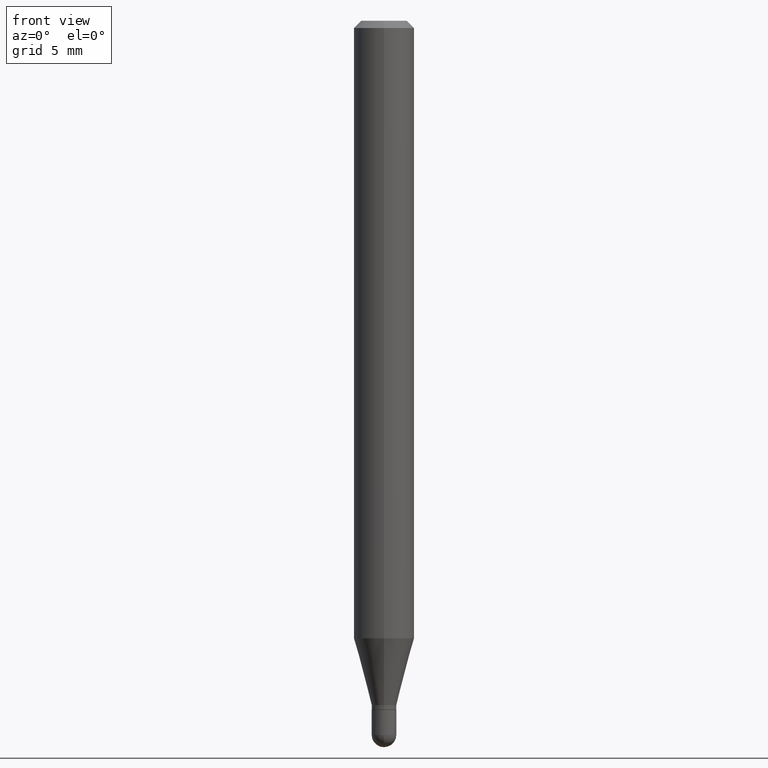
[diagram: clean part render]
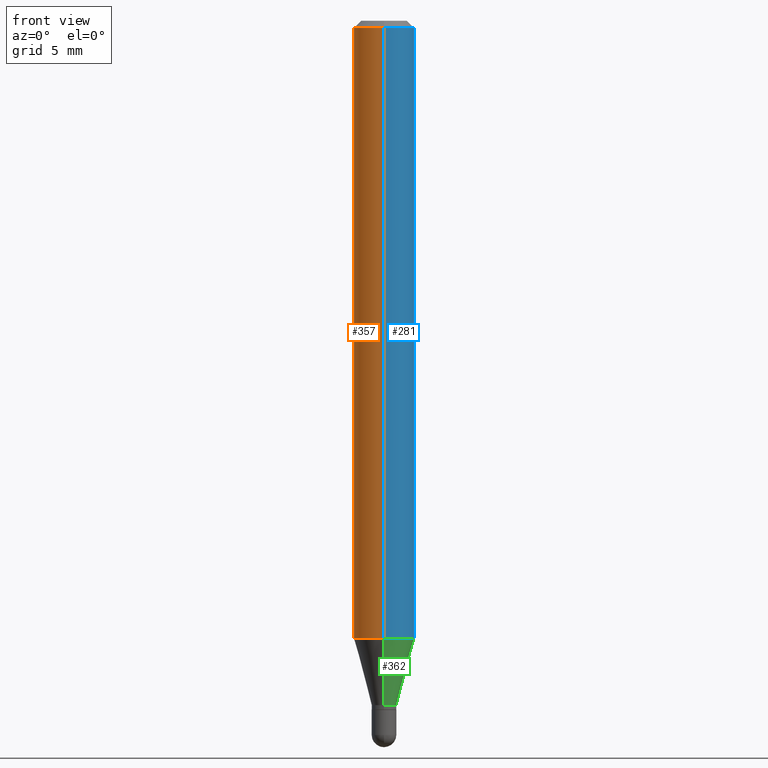
[diagram: same view with three faces highlighted in distinct colors, each labeled with its STEP entity id]
A machine part, front view with three faces highlighted in distinct colors.
Their STEP definitions:

[orange] entity #357 — the highlighted cylindrical surface (edge-blend (fillet) strip) has radius 1.5875 mm, axis along (-0, 0, 1).
#20 = CARTESIAN_POINT ( 'NONE',  ( -4.364351673553916201E-16, -0.06250000000000000000, 2.182164353173356186E-16 ) ) ;
#22 = ORIENTED_EDGE ( 'NONE', *, *, #209, .T. ) ;
#25 = DIRECTION ( 'NONE',  ( -2.445481636517202422E-29, 3.491462965077369898E-15, 1.000000000000000000 ) ) ;
#26 = EDGE_CURVE ( 'NONE', #274, #433, #76, .T. ) ;
#33 = VECTOR ( 'NONE', #305, 39.37007874015748143 ) ;
#37 = ORIENTED_EDGE ( 'NONE', *, *, #332, .F. ) ;
#53 = CARTESIAN_POINT ( 'NONE',  ( -4.364351673553606080E-16, -0.06250000000000446865, -1.274914120119951644 ) ) ;
#56 = AXIS2_PLACEMENT_3D ( 'NONE', #79, #25, #462 ) ;
#76 = CIRCLE ( 'NONE', #359, 0.06250000000000000000 ) ;
#79 = CARTESIAN_POINT ( 'NONE',  ( 0.000000000000000000, 0.000000000000000000, 0.000000000000000000 ) ) ;
#86 = CARTESIAN_POINT ( 'NONE',  ( 4.440892098500935790E-16, 0.06249999999999553135, -1.274914120119952310 ) ) ;
#118 = AXIS2_PLACEMENT_3D ( 'NONE', #135, #296, #176 ) ;
#133 = DIRECTION ( 'NONE',  ( -6.982962677686265922E-15, -1.000000000000000000, 3.483106191921935554E-15 ) ) ;
#135 = CARTESIAN_POINT ( 'NONE',  ( 3.117779068889829292E-29, -4.451315434053013459E-15, -1.274914120119952088 ) ) ;
#138 = VERTEX_POINT ( 'NONE', #86 ) ;
#144 = CARTESIAN_POINT ( 'NONE',  ( 4.440892098500939734E-16, 0.06249999999999995143, -0.01500000000000022669 ) ) ;
#169 = DIRECTION ( 'NONE',  ( -2.445481636517202422E-29, 3.491462965077369898E-15, 1.000000000000000000 ) ) ;
#176 = DIRECTION ( 'NONE',  ( -6.982962677686265922E-15, -1.000000000000000000, 4.370956789862821150E-15 ) ) ;
#209 = EDGE_CURVE ( 'NONE', #138, #257, #409, .T. ) ;
#254 = ORIENTED_EDGE ( 'NONE', *, *, #303, .T. ) ;
#257 = VERTEX_POINT ( 'NONE', #53 ) ;
#261 = DIRECTION ( 'NONE',  ( -2.445481636517202422E-29, 3.491462965077369898E-15, 1.000000000000000000 ) ) ;
#265 = LINE ( 'NONE', #342, #33 ) ;
#274 = VERTEX_POINT ( 'NONE', #144 ) ;
#296 = DIRECTION ( 'NONE',  ( -2.445481636517202422E-29, 3.491462965077369898E-15, 1.000000000000000000 ) ) ;
#303 = EDGE_CURVE ( 'NONE', #257, #433, #374, .T. ) ;
#305 = DIRECTION ( 'NONE',  ( -2.445481636517202422E-29, 3.491462965077369898E-15, 1.000000000000000000 ) ) ;
#332 = EDGE_CURVE ( 'NONE', #138, #274, #265, .T. ) ;
#342 = CARTESIAN_POINT ( 'NONE',  ( 4.440892098500625669E-16, 0.06250000000000000000, -2.182164353173356186E-16 ) ) ;
#357 = ADVANCED_FACE ( 'NONE', ( #497 ), #466, .T. ) ;
#359 = AXIS2_PLACEMENT_3D ( 'NONE', #471, #169, #133 ) ;
#374 = LINE ( 'NONE', #20, #491 ) ;
#375 = ORIENTED_EDGE ( 'NONE', *, *, #26, .F. ) ;
#409 = CIRCLE ( 'NONE', #118, 0.06250000000000000000 ) ;
#433 = VERTEX_POINT ( 'NONE', #504 ) ;
#462 = DIRECTION ( 'NONE',  ( -6.982962677686265922E-15, -1.000000000000000000, 3.491462965077369898E-15 ) ) ;
#463 = EDGE_LOOP ( 'NONE', ( #37, #22, #254, #375 ) ) ;
#466 = CYLINDRICAL_SURFACE ( 'NONE', #56, 0.06250000000000000000 ) ;
#471 = CARTESIAN_POINT ( 'NONE',  ( 3.668222454775805910E-31, -5.237194447616058495E-17, -0.01500000000000000812 ) ) ;
#491 = VECTOR ( 'NONE', #261, 39.37007874015748143 ) ;
#497 = FACE_OUTER_BOUND ( 'NONE', #463, .T. ) ;
#504 = CARTESIAN_POINT ( 'NONE',  ( -4.364351673553912750E-16, -0.06250000000000005551, -0.01499999999999979128 ) ) ;

[blue] entity #281 — the highlighted cylindrical surface (edge-blend (fillet) strip) has radius 1.5875 mm, axis along (-0, 0, 1).
#14 = DIRECTION ( 'NONE',  ( -2.445481636517202422E-29, 3.491462965077369898E-15, 1.000000000000000000 ) ) ;
#20 = CARTESIAN_POINT ( 'NONE',  ( -4.364351673553916201E-16, -0.06250000000000000000, 2.182164353173356186E-16 ) ) ;
#33 = VECTOR ( 'NONE', #305, 39.37007874015748143 ) ;
#39 = DIRECTION ( 'NONE',  ( -2.445481636517202422E-29, 3.491462965077369898E-15, 1.000000000000000000 ) ) ;
#40 = CIRCLE ( 'NONE', #271, 0.06250000000000000000 ) ;
#48 = EDGE_CURVE ( 'NONE', #257, #138, #328, .T. ) ;
#53 = CARTESIAN_POINT ( 'NONE',  ( -4.364351673553606080E-16, -0.06250000000000446865, -1.274914120119951644 ) ) ;
#72 = ORIENTED_EDGE ( 'NONE', *, *, #503, .F. ) ;
#86 = CARTESIAN_POINT ( 'NONE',  ( 4.440892098500935790E-16, 0.06249999999999553135, -1.274914120119952310 ) ) ;
#90 = ORIENTED_EDGE ( 'NONE', *, *, #48, .T. ) ;
#125 = ORIENTED_EDGE ( 'NONE', *, *, #303, .F. ) ;
#138 = VERTEX_POINT ( 'NONE', #86 ) ;
#143 = CYLINDRICAL_SURFACE ( 'NONE', #488, 0.06250000000000000000 ) ;
#144 = CARTESIAN_POINT ( 'NONE',  ( 4.440892098500939734E-16, 0.06249999999999995143, -0.01500000000000022669 ) ) ;
#201 = ORIENTED_EDGE ( 'NONE', *, *, #332, .T. ) ;
#203 = DIRECTION ( 'NONE',  ( -6.982962677686265922E-15, -1.000000000000000000, 4.370956789862821150E-15 ) ) ;
#225 = FACE_OUTER_BOUND ( 'NONE', #312, .T. ) ;
#257 = VERTEX_POINT ( 'NONE', #53 ) ;
#261 = DIRECTION ( 'NONE',  ( -2.445481636517202422E-29, 3.491462965077369898E-15, 1.000000000000000000 ) ) ;
#265 = LINE ( 'NONE', #342, #33 ) ;
#271 = AXIS2_PLACEMENT_3D ( 'NONE', #315, #39, #351 ) ;
#274 = VERTEX_POINT ( 'NONE', #144 ) ;
#281 = ADVANCED_FACE ( 'NONE', ( #225 ), #143, .T. ) ;
#291 = AXIS2_PLACEMENT_3D ( 'NONE', #356, #441, #203 ) ;
#303 = EDGE_CURVE ( 'NONE', #257, #433, #374, .T. ) ;
#305 = DIRECTION ( 'NONE',  ( -2.445481636517202422E-29, 3.491462965077369898E-15, 1.000000000000000000 ) ) ;
#312 = EDGE_LOOP ( 'NONE', ( #90, #201, #72, #125 ) ) ;
#315 = CARTESIAN_POINT ( 'NONE',  ( 3.668222454775805910E-31, -5.237194447616058495E-17, -0.01500000000000000812 ) ) ;
#328 = CIRCLE ( 'NONE', #291, 0.06250000000000000000 ) ;
#330 = DIRECTION ( 'NONE',  ( -6.982962677686265922E-15, -1.000000000000000000, 3.491462965077369898E-15 ) ) ;
#332 = EDGE_CURVE ( 'NONE', #138, #274, #265, .T. ) ;
#342 = CARTESIAN_POINT ( 'NONE',  ( 4.440892098500625669E-16, 0.06250000000000000000, -2.182164353173356186E-16 ) ) ;
#351 = DIRECTION ( 'NONE',  ( -6.982962677686265922E-15, -1.000000000000000000, 3.483106191921935554E-15 ) ) ;
#356 = CARTESIAN_POINT ( 'NONE',  ( 3.117779068889829292E-29, -4.451315434053013459E-15, -1.274914120119952088 ) ) ;
#374 = LINE ( 'NONE', #20, #491 ) ;
#418 = CARTESIAN_POINT ( 'NONE',  ( 0.000000000000000000, 0.000000000000000000, 0.000000000000000000 ) ) ;
#433 = VERTEX_POINT ( 'NONE', #504 ) ;
#441 = DIRECTION ( 'NONE',  ( -2.445481636517202422E-29, 3.491462965077369898E-15, 1.000000000000000000 ) ) ;
#488 = AXIS2_PLACEMENT_3D ( 'NONE', #418, #14, #330 ) ;
#491 = VECTOR ( 'NONE', #261, 39.37007874015748143 ) ;
#503 = EDGE_CURVE ( 'NONE', #433, #274, #40, .T. ) ;
#504 = CARTESIAN_POINT ( 'NONE',  ( -4.364351673553912750E-16, -0.06250000000000005551, -0.01499999999999979128 ) ) ;

[green] entity #362 — the highlighted conical surface has half-angle 15 deg.
#28 = CONICAL_SURFACE ( 'NONE', #99, 0.02549999999999992550, 0.2617993877991502960 ) ;
#30 = DIRECTION ( 'NONE',  ( -6.982962677686266711E-15, -1.000000000000000000, 0.000000000000000000 ) ) ;
#34 = DIRECTION ( 'NONE',  ( -2.445481636517202422E-29, 3.491462965077369898E-15, 1.000000000000000000 ) ) ;
#41 = VERTEX_POINT ( 'NONE', #324 ) ;
#48 = EDGE_CURVE ( 'NONE', #257, #138, #328, .T. ) ;
#53 = CARTESIAN_POINT ( 'NONE',  ( -4.364351673553606080E-16, -0.06250000000000446865, -1.274914120119951644 ) ) ;
#55 = ORIENTED_EDGE ( 'NONE', *, *, #178, .F. ) ;
#60 = LINE ( 'NONE', #452, #73 ) ;
#71 = LINE ( 'NONE', #506, #478 ) ;
#73 = VECTOR ( 'NONE', #181, 39.37007874015748143 ) ;
#83 = CARTESIAN_POINT ( 'NONE',  ( -1.780655482809647185E-16, -0.02550000000000486253, -1.413000000000000256 ) ) ;
#86 = CARTESIAN_POINT ( 'NONE',  ( 4.440892098500935790E-16, 0.06249999999999553135, -1.274914120119952310 ) ) ;
#99 = AXIS2_PLACEMENT_3D ( 'NONE', #191, #34, #30 ) ;
#104 = EDGE_CURVE ( 'NONE', #496, #41, #122, .T. ) ;
#117 = ORIENTED_EDGE ( 'NONE', *, *, #104, .T. ) ;
#122 = CIRCLE ( 'NONE', #381, 0.02549999999999992550 ) ;
#138 = VERTEX_POINT ( 'NONE', #86 ) ;
#159 = DIRECTION ( 'NONE',  ( 1.839019923739601104E-15, 0.2588190451025250693, 0.9659258262890670910 ) ) ;
#178 = EDGE_CURVE ( 'NONE', #496, #257, #60, .T. ) ;
#181 = DIRECTION ( 'NONE',  ( -1.807323732225330928E-15, -0.2588190451025182970, 0.9659258262890689783 ) ) ;
#191 = CARTESIAN_POINT ( 'NONE',  ( 3.455465552398807557E-29, -4.933437169654324770E-15, -1.413000000000000256 ) ) ;
#203 = DIRECTION ( 'NONE',  ( -6.982962677686265922E-15, -1.000000000000000000, 4.370956789862821150E-15 ) ) ;
#204 = DIRECTION ( 'NONE',  ( -6.982962677686266711E-15, -1.000000000000000000, 0.000000000000000000 ) ) ;
#235 = ORIENTED_EDGE ( 'NONE', *, *, #395, .T. ) ;
#257 = VERTEX_POINT ( 'NONE', #53 ) ;
#276 = ORIENTED_EDGE ( 'NONE', *, *, #48, .F. ) ;
#291 = AXIS2_PLACEMENT_3D ( 'NONE', #356, #441, #203 ) ;
#318 = DIRECTION ( 'NONE',  ( -2.445481636517202422E-29, 3.491462965077369898E-15, 1.000000000000000000 ) ) ;
#324 = CARTESIAN_POINT ( 'NONE',  ( 3.126388037344767028E-16, 0.02549999999999499195, -1.413000000000000256 ) ) ;
#328 = CIRCLE ( 'NONE', #291, 0.06250000000000000000 ) ;
#356 = CARTESIAN_POINT ( 'NONE',  ( 3.117779068889829292E-29, -4.451315434053013459E-15, -1.274914120119952088 ) ) ;
#362 = ADVANCED_FACE ( 'NONE', ( #380 ), #28, .T. ) ;
#364 = CARTESIAN_POINT ( 'NONE',  ( 3.455465552398807557E-29, -4.933437169654324770E-15, -1.413000000000000256 ) ) ;
#380 = FACE_OUTER_BOUND ( 'NONE', #469, .T. ) ;
#381 = AXIS2_PLACEMENT_3D ( 'NONE', #364, #318, #204 ) ;
#395 = EDGE_CURVE ( 'NONE', #41, #138, #71, .T. ) ;
#441 = DIRECTION ( 'NONE',  ( -2.445481636517202422E-29, 3.491462965077369898E-15, 1.000000000000000000 ) ) ;
#452 = CARTESIAN_POINT ( 'NONE',  ( -1.780655482809647185E-16, -0.02550000000000486253, -1.413000000000000256 ) ) ;
#469 = EDGE_LOOP ( 'NONE', ( #117, #235, #276, #55 ) ) ;
#478 = VECTOR ( 'NONE', #159, 39.37007874015748143 ) ;
#496 = VERTEX_POINT ( 'NONE', #83 ) ;
#506 = CARTESIAN_POINT ( 'NONE',  ( 1.811883976188595554E-16, 0.02549999999999499195, -1.413000000000000256 ) ) ;